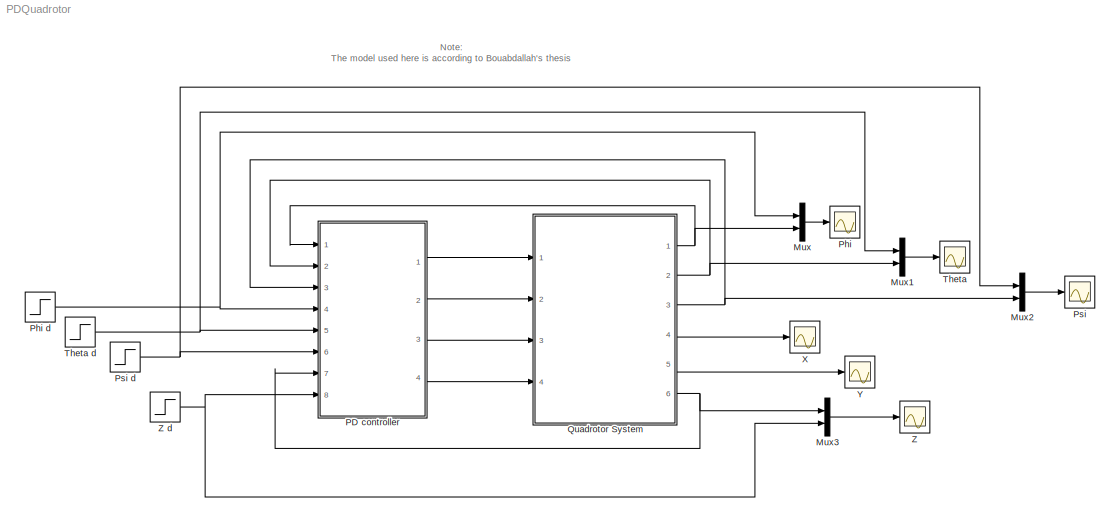
MODEL PDQuadrotor
KIND model
BLOCK [Mux] Mux
  DisplayOption = bar
  Inputs = 2
  Ports = [2, 1]
  SID = 1
BLOCK [Mux] Mux1
  DisplayOption = bar
  Inputs = 2
  Ports = [2, 1]
  SID = 2
BLOCK [Mux] Mux2
  DisplayOption = bar
  Inputs = 2
  Ports = [2, 1]
  SID = 3
BLOCK [Mux] Mux3
  DisplayOption = bar
  Inputs = 2
  Ports = [2, 1]
  SID = 4
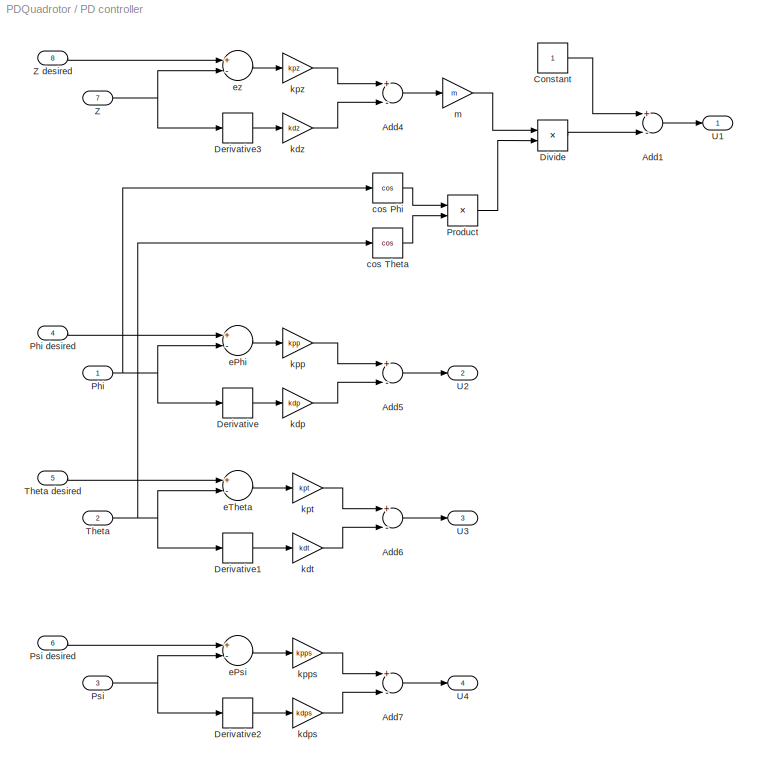
BLOCK [SubSystem] PD controller
  Ports = [8, 4]
  RequestExecContextInheritance = off
  SID = 5
BLOCK [Sum] PD controller/Add1
  InputSameDT = off
  Inputs = +-
  OutDataTypeStr = Inherit: Inherit via internal rule
  Ports = [2, 1]
  SID = 14
  SaturateOnIntegerOverflow = off
BLOCK [Sum] PD controller/Add4
  InputSameDT = off
  Inputs = +-
  OutDataTypeStr = Inherit: Inherit via internal rule
  Ports = [2, 1]
  SID = 15
  SaturateOnIntegerOverflow = off
BLOCK [Sum] PD controller/Add5
  InputSameDT = off
  Inputs = +-
  OutDataTypeStr = Inherit: Inherit via internal rule
  Ports = [2, 1]
  SID = 16
  SaturateOnIntegerOverflow = off
BLOCK [Sum] PD controller/Add6
  InputSameDT = off
  Inputs = +-
  OutDataTypeStr = Inherit: Inherit via internal rule
  Ports = [2, 1]
  SID = 17
  SaturateOnIntegerOverflow = off
BLOCK [Sum] PD controller/Add7
  InputSameDT = off
  Inputs = +-
  OutDataTypeStr = Inherit: Inherit via internal rule
  Ports = [2, 1]
  SID = 18
  SaturateOnIntegerOverflow = off
BLOCK [Constant] PD controller/Constant
  SID = 19
BLOCK [Derivative] PD controller/Derivative
  SID = 20
BLOCK [Derivative] PD controller/Derivative1
  SID = 21
BLOCK [Derivative] PD controller/Derivative2
  SID = 22
BLOCK [Derivative] PD controller/Derivative3
  SID = 23
BLOCK [Product] PD controller/Divide
  InputSameDT = off
  Inputs = */
  OutDataTypeStr = Inherit: Inherit via internal rule
  Ports = [2, 1]
  RndMeth = Floor
  SID = 24
  SaturateOnIntegerOverflow = off
BLOCK [Inport] PD controller/Phi
  IconDisplay = Port number
  SID = 6
BLOCK [Inport] PD controller/Phi desired
  IconDisplay = Port number
  Port = 4
  SID = 9
BLOCK [Product] PD controller/Product
  InputSameDT = off
  OutDataTypeStr = Inherit: Inherit via internal rule
  Ports = [2, 1]
  SID = 25
  SaturateOnIntegerOverflow = off
BLOCK [Inport] PD controller/Psi
  IconDisplay = Port number
  Port = 3
  SID = 8
BLOCK [Inport] PD controller/Psi desired
  IconDisplay = Port number
  Port = 6
  SID = 11
BLOCK [Inport] PD controller/Theta
  IconDisplay = Port number
  Port = 2
  SID = 7
BLOCK [Inport] PD controller/Theta desired
  IconDisplay = Port number
  Port = 5
  SID = 10
BLOCK [Outport] PD controller/U1
  IconDisplay = Port number
  SID = 41
BLOCK [Outport] PD controller/U2
  IconDisplay = Port number
  Port = 2
  SID = 42
BLOCK [Outport] PD controller/U3
  IconDisplay = Port number
  Port = 3
  SID = 43
BLOCK [Outport] PD controller/U4
  IconDisplay = Port number
  Port = 4
  SID = 44
BLOCK [Inport] PD controller/Z
  IconDisplay = Port number
  Port = 7
  SID = 12
BLOCK [Inport] PD controller/Z desired
  IconDisplay = Port number
  Port = 8
  SID = 13
BLOCK [Trigonometry] PD controller/cos Phi
  Operator = cos
  Ports = [1, 1]
  SID = 26
BLOCK [Trigonometry] PD controller/cos Theta
  Operator = cos
  Ports = [1, 1]
  SID = 27
BLOCK [Sum] PD controller/ePhi
  InputSameDT = off
  Inputs = +-
  OutDataTypeStr = Inherit: Inherit via internal rule
  Ports = [2, 1]
  SID = 28
  SaturateOnIntegerOverflow = off
BLOCK [Sum] PD controller/ePsi
  InputSameDT = off
  Inputs = +-
  OutDataTypeStr = Inherit: Inherit via internal rule
  Ports = [2, 1]
  SID = 29
  SaturateOnIntegerOverflow = off
BLOCK [Sum] PD controller/eTheta
  InputSameDT = off
  Inputs = +-
  OutDataTypeStr = Inherit: Inherit via internal rule
  Ports = [2, 1]
  SID = 30
  SaturateOnIntegerOverflow = off
BLOCK [Sum] PD controller/ez
  InputSameDT = off
  Inputs = +-
  OutDataTypeStr = Inherit: Inherit via internal rule
  Ports = [2, 1]
  SID = 31
  SaturateOnIntegerOverflow = off
BLOCK [Gain] PD controller/kdp
  Gain = kdp
  OutDataTypeStr = Inherit: Inherit via internal rule
  ParamDataTypeStr = Inherit: Inherit via internal rule
  SID = 32
  SaturateOnIntegerOverflow = off
BLOCK [Gain] PD controller/kdps
  Gain = kdps
  OutDataTypeStr = Inherit: Inherit via internal rule
  ParamDataTypeStr = Inherit: Inherit via internal rule
  SID = 33
  SaturateOnIntegerOverflow = off
BLOCK [Gain] PD controller/kdt
  Gain = kdt
  OutDataTypeStr = Inherit: Inherit via internal rule
  ParamDataTypeStr = Inherit: Inherit via internal rule
  SID = 34
  SaturateOnIntegerOverflow = off
BLOCK [Gain] PD controller/kdz
  Gain = kdz
  OutDataTypeStr = Inherit: Inherit via internal rule
  ParamDataTypeStr = Inherit: Inherit via internal rule
  SID = 35
  SaturateOnIntegerOverflow = off
BLOCK [Gain] PD controller/kpp
  Gain = kpp
  OutDataTypeStr = Inherit: Inherit via internal rule
  ParamDataTypeStr = Inherit: Inherit via internal rule
  SID = 36
  SaturateOnIntegerOverflow = off
BLOCK [Gain] PD controller/kpps
  Gain = kpps
  OutDataTypeStr = Inherit: Inherit via internal rule
  ParamDataTypeStr = Inherit: Inherit via internal rule
  SID = 37
  SaturateOnIntegerOverflow = off
BLOCK [Gain] PD controller/kpt
  Gain = kpt
  OutDataTypeStr = Inherit: Inherit via internal rule
  ParamDataTypeStr = Inherit: Inherit via internal rule
  SID = 38
  SaturateOnIntegerOverflow = off
BLOCK [Gain] PD controller/kpz
  Gain = kpz
  OutDataTypeStr = Inherit: Inherit via internal rule
  ParamDataTypeStr = Inherit: Inherit via internal rule
  SID = 39
  SaturateOnIntegerOverflow = off
BLOCK [Gain] PD controller/m
  Gain = m
  OutDataTypeStr = Inherit: Inherit via internal rule
  ParamDataTypeStr = Inherit: Inherit via internal rule
  SID = 40
  SaturateOnIntegerOverflow = off
BLOCK [Scope] Phi
  Floating = off
  NumInputPorts = 1
  Ports = [1]
  SID = 45
  ScopeSpecificationString = C++SS(StrPVP('Location','[188, 390, 512, 629]'),StrPVP('Open','off'),MxPVP('AxesTitles',54,'struct(''axes1'',''%<SignalLabel>'')'),StrPVP('DataFormat','StructureWithTime'),StrPVP('LimitDataPoints','off'),StrPVP('BlockParamSampleTime','0'),StrPVP('Decimation','1'),StrPVP('BlockParamSampleInput','off'))
BLOCK [Step] Phi d
  SID = 46
  SampleTime = 0
BLOCK [Scope] Psi
  Floating = off
  NumInputPorts = 1
  Ports = [1]
  SID = 47
  ScopeSpecificationString = C++SS(StrPVP('Location','[188, 390, 512, 629]'),StrPVP('Open','off'),MxPVP('AxesTitles',54,'struct(''axes1'',''%<SignalLabel>'')'),StrPVP('SaveName','ScopeData2'),StrPVP('DataFormat','StructureWithTime'),StrPVP('LimitDataPoints','off'),StrPVP('BlockParamSampleTime','0'),StrPVP('Decimation','1'),StrPVP('BlockParamSampleInput','off'))
BLOCK [Step] Psi d
  SID = 48
  SampleTime = 0
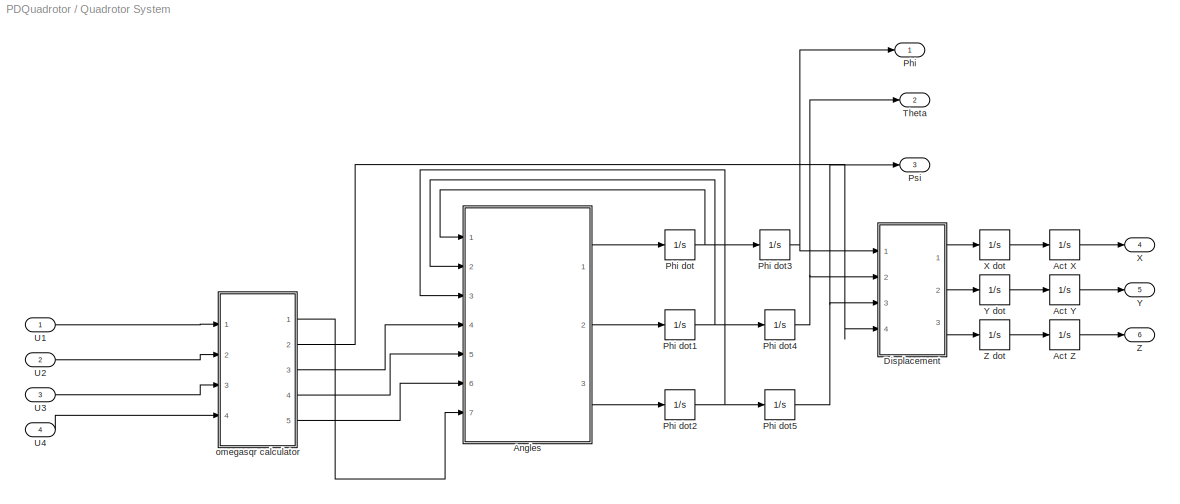
BLOCK [SubSystem] Quadrotor System
  Ports = [4, 6]
  RequestExecContextInheritance = off
  SID = 49
BLOCK [Integrator] Quadrotor System/Act X
  Ports = [1, 1]
  SID = 54
BLOCK [Integrator] Quadrotor System/Act Y
  Ports = [1, 1]
  SID = 55
BLOCK [Integrator] Quadrotor System/Act Z
  Ports = [1, 1]
  SID = 56
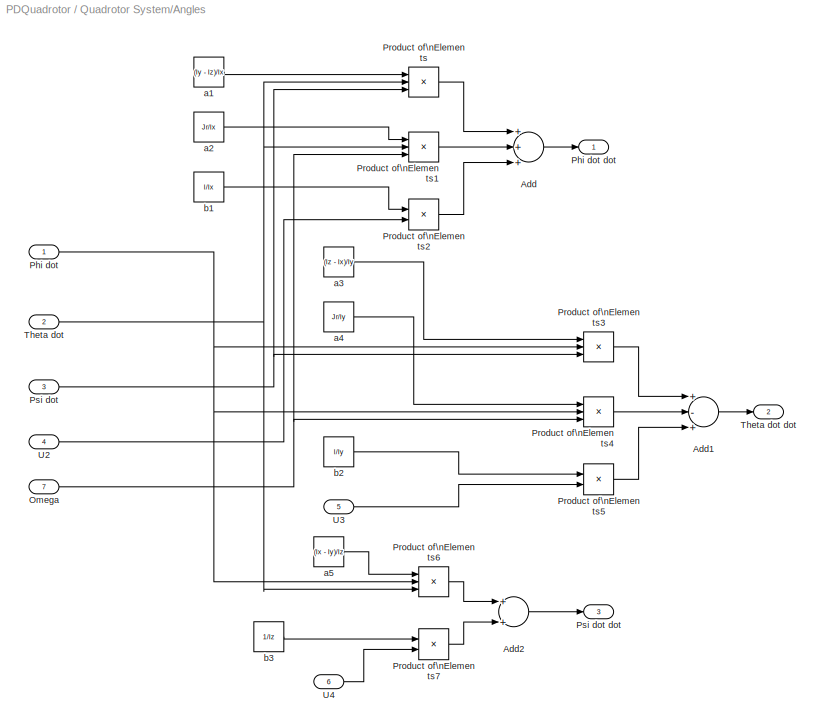
BLOCK [SubSystem] Quadrotor System/Angles
  Ports = [7, 3]
  RequestExecContextInheritance = off
  SID = 57
BLOCK [Sum] Quadrotor System/Angles/Add
  InputSameDT = off
  Inputs = +++
  OutDataTypeStr = Inherit: Inherit via internal rule
  Ports = [3, 1]
  SID = 65
  SaturateOnIntegerOverflow = off
BLOCK [Sum] Quadrotor System/Angles/Add1
  InputSameDT = off
  Inputs = +-+
  OutDataTypeStr = Inherit: Inherit via internal rule
  Ports = [3, 1]
  SID = 66
  SaturateOnIntegerOverflow = off
BLOCK [Sum] Quadrotor System/Angles/Add2
  InputSameDT = off
  OutDataTypeStr = Inherit: Inherit via internal rule
  Ports = [2, 1]
  SID = 67
  SaturateOnIntegerOverflow = off
BLOCK [Inport] Quadrotor System/Angles/Omega
  IconDisplay = Port number
  Port = 7
  SID = 64
BLOCK [Inport] Quadrotor System/Angles/Phi dot
  IconDisplay = Port number
  SID = 58
BLOCK [Outport] Quadrotor System/Angles/Phi dot dot
  IconDisplay = Port number
  SID = 84
BLOCK [Product] Quadrotor System/Angles/Product of\nElements
  InputSameDT = off
  Inputs = 3
  OutDataTypeStr = Inherit: Inherit via internal rule
  Ports = [3, 1]
  RndMeth = Floor
  SID = 68
  SaturateOnIntegerOverflow = off
BLOCK [Product] Quadrotor System/Angles/Product of\nElements1
  InputSameDT = off
  Inputs = 3
  OutDataTypeStr = Inherit: Inherit via internal rule
  Ports = [3, 1]
  RndMeth = Floor
  SID = 69
  SaturateOnIntegerOverflow = off
BLOCK [Product] Quadrotor System/Angles/Product of\nElements2
  InputSameDT = off
  OutDataTypeStr = Inherit: Inherit via internal rule
  Ports = [2, 1]
  RndMeth = Floor
  SID = 70
  SaturateOnIntegerOverflow = off
BLOCK [Product] Quadrotor System/Angles/Product of\nElements3
  InputSameDT = off
  Inputs = 3
  OutDataTypeStr = Inherit: Inherit via internal rule
  Ports = [3, 1]
  RndMeth = Floor
  SID = 71
  SaturateOnIntegerOverflow = off
BLOCK [Product] Quadrotor System/Angles/Product of\nElements4
  InputSameDT = off
  Inputs = 3
  OutDataTypeStr = Inherit: Inherit via internal rule
  Ports = [3, 1]
  RndMeth = Floor
  SID = 72
  SaturateOnIntegerOverflow = off
BLOCK [Product] Quadrotor System/Angles/Product of\nElements5
  InputSameDT = off
  OutDataTypeStr = Inherit: Inherit via internal rule
  Ports = [2, 1]
  RndMeth = Floor
  SID = 73
  SaturateOnIntegerOverflow = off
BLOCK [Product] Quadrotor System/Angles/Product of\nElements6
  InputSameDT = off
  Inputs = 3
  OutDataTypeStr = Inherit: Inherit via internal rule
  Ports = [3, 1]
  RndMeth = Floor
  SID = 74
  SaturateOnIntegerOverflow = off
BLOCK [Product] Quadrotor System/Angles/Product of\nElements7
  InputSameDT = off
  OutDataTypeStr = Inherit: Inherit via internal rule
  Ports = [2, 1]
  RndMeth = Floor
  SID = 75
  SaturateOnIntegerOverflow = off
BLOCK [Inport] Quadrotor System/Angles/Psi dot
  IconDisplay = Port number
  Port = 3
  SID = 60
BLOCK [Outport] Quadrotor System/Angles/Psi dot dot
  IconDisplay = Port number
  Port = 3
  SID = 86
BLOCK [Inport] Quadrotor System/Angles/Theta dot
  IconDisplay = Port number
  Port = 2
  SID = 59
BLOCK [Outport] Quadrotor System/Angles/Theta dot dot
  IconDisplay = Port number
  Port = 2
  SID = 85
BLOCK [Inport] Quadrotor System/Angles/U2
  IconDisplay = Port number
  Port = 4
  SID = 61
BLOCK [Inport] Quadrotor System/Angles/U3
  IconDisplay = Port number
  Port = 5
  SID = 62
BLOCK [Inport] Quadrotor System/Angles/U4
  IconDisplay = Port number
  Port = 6
  SID = 63
BLOCK [Constant] Quadrotor System/Angles/a1
  SID = 76
  Value = (Iy - Iz)/Ix
BLOCK [Constant] Quadrotor System/Angles/a2
  SID = 77
  Value = Jr/Ix
BLOCK [Constant] Quadrotor System/Angles/a3
  SID = 78
  Value = (Iz - Ix)/Iy
BLOCK [Constant] Quadrotor System/Angles/a4
  SID = 79
  Value = Jr/Iy
BLOCK [Constant] Quadrotor System/Angles/a5
  SID = 80
  Value = (Ix - Iy)/Iz
BLOCK [Constant] Quadrotor System/Angles/b1
  SID = 81
  Value = l/Ix
BLOCK [Constant] Quadrotor System/Angles/b2
  SID = 82
  Value = l/Iy
BLOCK [Constant] Quadrotor System/Angles/b3
  SID = 83
  Value = 1/Iz
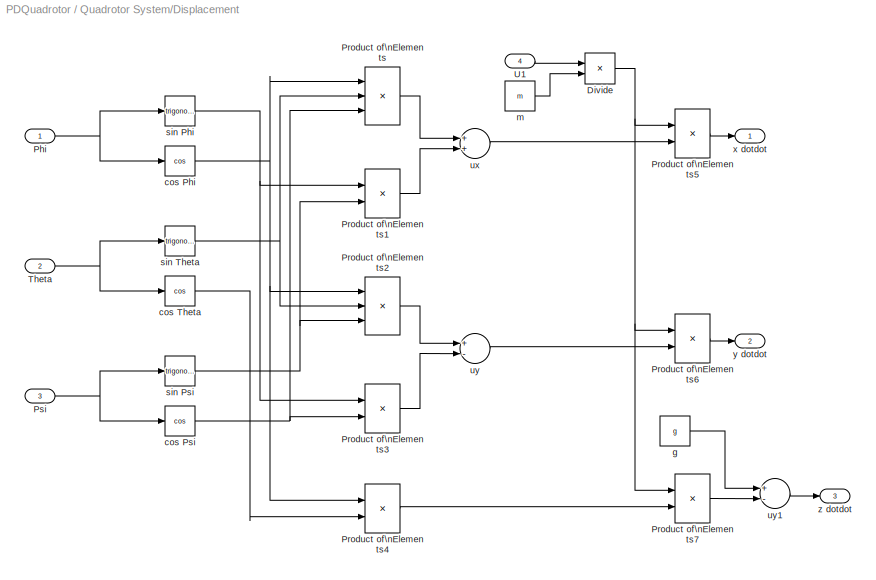
BLOCK [SubSystem] Quadrotor System/Displacement
  Ports = [4, 3]
  RequestExecContextInheritance = off
  SID = 87
BLOCK [Product] Quadrotor System/Displacement/Divide
  InputSameDT = off
  Inputs = */
  OutDataTypeStr = Inherit: Inherit via internal rule
  Ports = [2, 1]
  RndMeth = Floor
  SID = 92
  SaturateOnIntegerOverflow = off
BLOCK [Inport] Quadrotor System/Displacement/Phi
  IconDisplay = Port number
  SID = 88
BLOCK [Product] Quadrotor System/Displacement/Product of\nElements
  InputSameDT = off
  Inputs = 3
  OutDataTypeStr = Inherit: Inherit via internal rule
  Ports = [3, 1]
  RndMeth = Floor
  SID = 93
  SaturateOnIntegerOverflow = off
BLOCK [Product] Quadrotor System/Displacement/Product of\nElements1
  InputSameDT = off
  OutDataTypeStr = Inherit: Inherit via internal rule
  Ports = [2, 1]
  RndMeth = Floor
  SID = 94
  SaturateOnIntegerOverflow = off
BLOCK [Product] Quadrotor System/Displacement/Product of\nElements2
  InputSameDT = off
  Inputs = 3
  OutDataTypeStr = Inherit: Inherit via internal rule
  Ports = [3, 1]
  RndMeth = Floor
  SID = 95
  SaturateOnIntegerOverflow = off
BLOCK [Product] Quadrotor System/Displacement/Product of\nElements3
  InputSameDT = off
  OutDataTypeStr = Inherit: Inherit via internal rule
  Ports = [2, 1]
  RndMeth = Floor
  SID = 96
  SaturateOnIntegerOverflow = off
BLOCK [Product] Quadrotor System/Displacement/Product of\nElements4
  InputSameDT = off
  OutDataTypeStr = Inherit: Inherit via internal rule
  Ports = [2, 1]
  RndMeth = Floor
  SID = 97
  SaturateOnIntegerOverflow = off
BLOCK [Product] Quadrotor System/Displacement/Product of\nElements5
  InputSameDT = off
  OutDataTypeStr = Inherit: Inherit via internal rule
  Ports = [2, 1]
  RndMeth = Floor
  SID = 98
  SaturateOnIntegerOverflow = off
BLOCK [Product] Quadrotor System/Displacement/Product of\nElements6
  InputSameDT = off
  OutDataTypeStr = Inherit: Inherit via internal rule
  Ports = [2, 1]
  RndMeth = Floor
  SID = 99
  SaturateOnIntegerOverflow = off
BLOCK [Product] Quadrotor System/Displacement/Product of\nElements7
  InputSameDT = off
  OutDataTypeStr = Inherit: Inherit via internal rule
  Ports = [2, 1]
  RndMeth = Floor
  SID = 100
  SaturateOnIntegerOverflow = off
BLOCK [Inport] Quadrotor System/Displacement/Psi
  IconDisplay = Port number
  Port = 3
  SID = 90
BLOCK [Inport] Quadrotor System/Displacement/Theta
  IconDisplay = Port number
  Port = 2
  SID = 89
BLOCK [Inport] Quadrotor System/Displacement/U1
  IconDisplay = Port number
  Port = 4
  SID = 91
BLOCK [Trigonometry] Quadrotor System/Displacement/cos Phi
  Operator = cos
  Ports = [1, 1]
  SID = 101
BLOCK [Trigonometry] Quadrotor System/Displacement/cos Psi
  Operator = cos
  Ports = [1, 1]
  SID = 102
BLOCK [Trigonometry] Quadrotor System/Displacement/cos Theta
  Operator = cos
  Ports = [1, 1]
  SID = 103
BLOCK [Constant] Quadrotor System/Displacement/g
  SID = 104
  Value = g
BLOCK [Constant] Quadrotor System/Displacement/m
  SID = 105
  Value = m
BLOCK [Trigonometry] Quadrotor System/Displacement/sin Phi
  Ports = [1, 1]
  SID = 106
BLOCK [Trigonometry] Quadrotor System/Displacement/sin Psi
  Ports = [1, 1]
  SID = 107
BLOCK [Trigonometry] Quadrotor System/Displacement/sin Theta
  Ports = [1, 1]
  SID = 108
BLOCK [Sum] Quadrotor System/Displacement/ux
  InputSameDT = off
  OutDataTypeStr = Inherit: Inherit via internal rule
  Ports = [2, 1]
  SID = 109
  SaturateOnIntegerOverflow = off
BLOCK [Sum] Quadrotor System/Displacement/uy
  InputSameDT = off
  Inputs = +-
  OutDataTypeStr = Inherit: Inherit via internal rule
  Ports = [2, 1]
  SID = 110
  SaturateOnIntegerOverflow = off
BLOCK [Sum] Quadrotor System/Displacement/uy1
  InputSameDT = off
  Inputs = +-
  OutDataTypeStr = Inherit: Inherit via internal rule
  Ports = [2, 1]
  SID = 111
  SaturateOnIntegerOverflow = off
BLOCK [Outport] Quadrotor System/Displacement/x dotdot
  IconDisplay = Port number
  SID = 112
BLOCK [Outport] Quadrotor System/Displacement/y dotdot
  IconDisplay = Port number
  Port = 2
  SID = 113
BLOCK [Outport] Quadrotor System/Displacement/z dotdot
  IconDisplay = Port number
  Port = 3
  SID = 114
BLOCK [Outport] Quadrotor System/Phi
  IconDisplay = Port number
  SID = 159
BLOCK [Integrator] Quadrotor System/Phi dot
  Ports = [1, 1]
  SID = 115
BLOCK [Integrator] Quadrotor System/Phi dot1
  Ports = [1, 1]
  SID = 116
  ZeroCross = off
BLOCK [Integrator] Quadrotor System/Phi dot2
  Ports = [1, 1]
  SID = 117
  ZeroCross = off
BLOCK [Integrator] Quadrotor System/Phi dot3
  Ports = [1, 1]
  SID = 118
  ZeroCross = off
BLOCK [Integrator] Quadrotor System/Phi dot4
  Ports = [1, 1]
  SID = 119
  ZeroCross = off
BLOCK [Integrator] Quadrotor System/Phi dot5
  Ports = [1, 1]
  SID = 120
  ZeroCross = off
BLOCK [Outport] Quadrotor System/Psi
  IconDisplay = Port number
  Port = 3
  SID = 161
BLOCK [Outport] Quadrotor System/Theta
  IconDisplay = Port number
  Port = 2
  SID = 160
BLOCK [Inport] Quadrotor System/U1
  IconDisplay = Port number
  SID = 50
BLOCK [Inport] Quadrotor System/U2
  IconDisplay = Port number
  Port = 2
  SID = 51
BLOCK [Inport] Quadrotor System/U3
  IconDisplay = Port number
  Port = 3
  SID = 52
BLOCK [Inport] Quadrotor System/U4
  IconDisplay = Port number
  Port = 4
  SID = 53
BLOCK [Outport] Quadrotor System/X
  IconDisplay = Port number
  Port = 4
  SID = 162
BLOCK [Integrator] Quadrotor System/X dot
  Ports = [1, 1]
  SID = 121
BLOCK [Outport] Quadrotor System/Y
  IconDisplay = Port number
  Port = 5
  SID = 163
BLOCK [Integrator] Quadrotor System/Y dot
  Ports = [1, 1]
  SID = 122
BLOCK [Outport] Quadrotor System/Z
  IconDisplay = Port number
  Port = 6
  SID = 164
BLOCK [Integrator] Quadrotor System/Z dot
  Ports = [1, 1]
  SID = 123
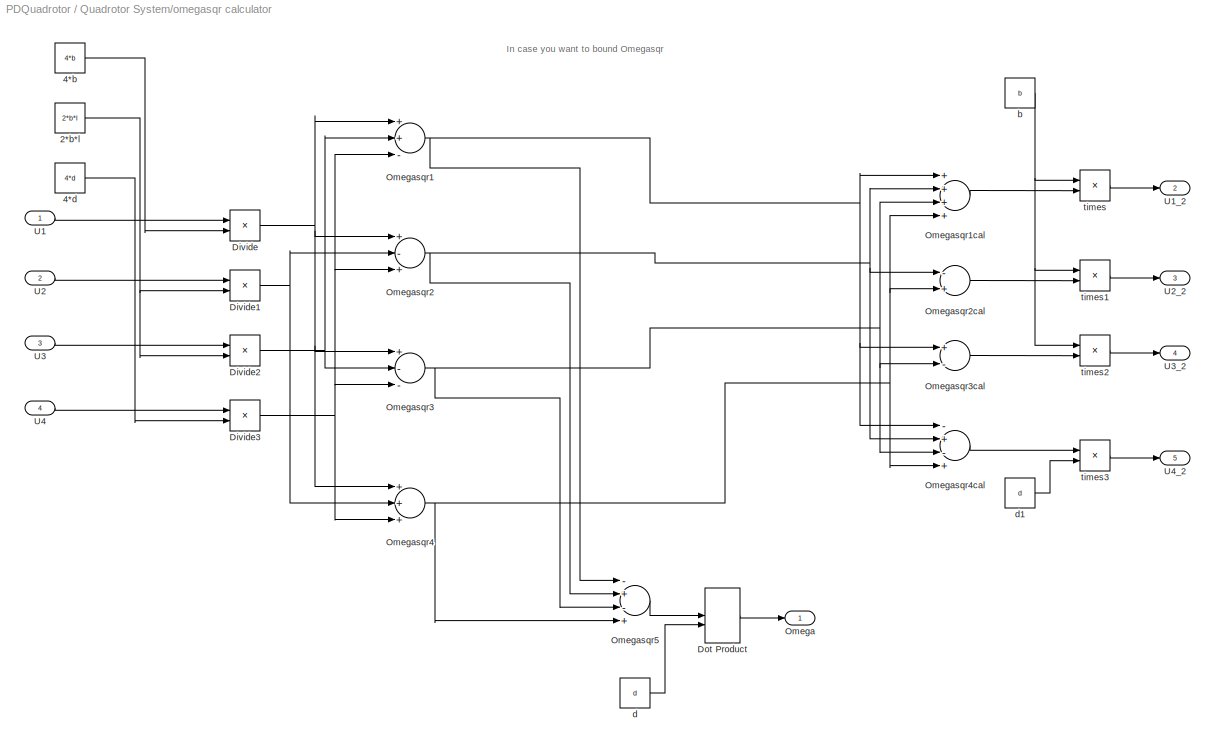
BLOCK [SubSystem] Quadrotor System/omegasqr calculator
  Ports = [4, 5]
  RequestExecContextInheritance = off
  SID = 124
BLOCK [Constant] Quadrotor System/omegasqr calculator/2*b*l
  SID = 129
  Value = 2*b*l
BLOCK [Constant] Quadrotor System/omegasqr calculator/4*b
  SID = 130
  Value = 4*b
BLOCK [Constant] Quadrotor System/omegasqr calculator/4*d
  SID = 131
  Value = 4*d
BLOCK [Product] Quadrotor System/omegasqr calculator/Divide
  InputSameDT = off
  Inputs = */
  OutDataTypeStr = Inherit: Inherit via internal rule
  Ports = [2, 1]
  RndMeth = Floor
  SID = 132
  SaturateOnIntegerOverflow = off
BLOCK [Product] Quadrotor System/omegasqr calculator/Divide1
  InputSameDT = off
  Inputs = */
  OutDataTypeStr = Inherit: Inherit via internal rule
  Ports = [2, 1]
  RndMeth = Floor
  SID = 133
  SaturateOnIntegerOverflow = off
BLOCK [Product] Quadrotor System/omegasqr calculator/Divide2
  InputSameDT = off
  Inputs = */
  OutDataTypeStr = Inherit: Inherit via internal rule
  Ports = [2, 1]
  RndMeth = Floor
  SID = 134
  SaturateOnIntegerOverflow = off
BLOCK [Product] Quadrotor System/omegasqr calculator/Divide3
  InputSameDT = off
  Inputs = */
  OutDataTypeStr = Inherit: Inherit via internal rule
  Ports = [2, 1]
  RndMeth = Floor
  SID = 135
  SaturateOnIntegerOverflow = off
BLOCK [DotProduct] Quadrotor System/omegasqr calculator/Dot Product
  OutDataTypeStr = Inherit: Inherit via internal rule
  SID = 136
BLOCK [Outport] Quadrotor System/omegasqr calculator/Omega
  IconDisplay = Port number
  SID = 153
BLOCK [Sum] Quadrotor System/omegasqr calculator/Omegasqr1
  InputSameDT = off
  Inputs = ++-
  OutDataTypeStr = Inherit: Inherit via internal rule
  Ports = [3, 1]
  SID = 137
  SaturateOnIntegerOverflow = off
BLOCK [Sum] Quadrotor System/omegasqr calculator/Omegasqr1cal
  InputSameDT = off
  Inputs = ++++
  OutDataTypeStr = Inherit: Inherit via internal rule
  Ports = [4, 1]
  SID = 138
  SaturateOnIntegerOverflow = off
BLOCK [Sum] Quadrotor System/omegasqr calculator/Omegasqr2
  InputSameDT = off
  Inputs = +-+
  OutDataTypeStr = Inherit: Inherit via internal rule
  Ports = [3, 1]
  SID = 139
  SaturateOnIntegerOverflow = off
BLOCK [Sum] Quadrotor System/omegasqr calculator/Omegasqr2cal
  InputSameDT = off
  Inputs = -+
  OutDataTypeStr = Inherit: Inherit via internal rule
  Ports = [2, 1]
  SID = 140
  SaturateOnIntegerOverflow = off
BLOCK [Sum] Quadrotor System/omegasqr calculator/Omegasqr3
  InputSameDT = off
  Inputs = +--
  OutDataTypeStr = Inherit: Inherit via internal rule
  Ports = [3, 1]
  SID = 141
  SaturateOnIntegerOverflow = off
BLOCK [Sum] Quadrotor System/omegasqr calculator/Omegasqr3cal
  InputSameDT = off
  Inputs = +-
  OutDataTypeStr = Inherit: Inherit via internal rule
  Ports = [2, 1]
  SID = 142
  SaturateOnIntegerOverflow = off
BLOCK [Sum] Quadrotor System/omegasqr calculator/Omegasqr4
  InputSameDT = off
  Inputs = +++
  OutDataTypeStr = Inherit: Inherit via internal rule
  Ports = [3, 1]
  SID = 143
  SaturateOnIntegerOverflow = off
BLOCK [Sum] Quadrotor System/omegasqr calculator/Omegasqr4cal
  InputSameDT = off
  Inputs = -+-+
  OutDataTypeStr = Inherit: Inherit via internal rule
  Ports = [4, 1]
  SID = 144
  SaturateOnIntegerOverflow = off
BLOCK [Sum] Quadrotor System/omegasqr calculator/Omegasqr5
  InputSameDT = off
  Inputs = -+-+
  OutDataTypeStr = Inherit: Inherit via internal rule
  Ports = [4, 1]
  SID = 145
  SaturateOnIntegerOverflow = off
BLOCK [Inport] Quadrotor System/omegasqr calculator/U1
  IconDisplay = Port number
  SID = 125
BLOCK [Outport] Quadrotor System/omegasqr calculator/U1_2
  IconDisplay = Port number
  Port = 2
  SID = 154
BLOCK [Inport] Quadrotor System/omegasqr calculator/U2
  IconDisplay = Port number
  Port = 2
  SID = 126
BLOCK [Outport] Quadrotor System/omegasqr calculator/U2_2
  IconDisplay = Port number
  Port = 3
  SID = 155
BLOCK [Inport] Quadrotor System/omegasqr calculator/U3
  IconDisplay = Port number
  Port = 3
  SID = 127
BLOCK [Outport] Quadrotor System/omegasqr calculator/U3_2
  IconDisplay = Port number
  Port = 4
  SID = 156
BLOCK [Inport] Quadrotor System/omegasqr calculator/U4
  IconDisplay = Port number
  Port = 4
  SID = 128
BLOCK [Outport] Quadrotor System/omegasqr calculator/U4_2
  IconDisplay = Port number
  Port = 5
  SID = 157
BLOCK [Constant] Quadrotor System/omegasqr calculator/b
  SID = 146
  Value = b
BLOCK [Constant] Quadrotor System/omegasqr calculator/d
  SID = 147
  Value = d
BLOCK [Constant] Quadrotor System/omegasqr calculator/d1
  SID = 148
  Value = d
BLOCK [Product] Quadrotor System/omegasqr calculator/times
  InputSameDT = off
  Inputs = **
  OutDataTypeStr = Inherit: Inherit via internal rule
  Ports = [2, 1]
  RndMeth = Floor
  SID = 149
  SaturateOnIntegerOverflow = off
BLOCK [Product] Quadrotor System/omegasqr calculator/times1
  InputSameDT = off
  Inputs = **
  OutDataTypeStr = Inherit: Inherit via internal rule
  Ports = [2, 1]
  RndMeth = Floor
  SID = 150
  SaturateOnIntegerOverflow = off
BLOCK [Product] Quadrotor System/omegasqr calculator/times2
  InputSameDT = off
  Inputs = **
  OutDataTypeStr = Inherit: Inherit via internal rule
  Ports = [2, 1]
  RndMeth = Floor
  SID = 151
  SaturateOnIntegerOverflow = off
BLOCK [Product] Quadrotor System/omegasqr calculator/times3
  InputSameDT = off
  Inputs = **
  OutDataTypeStr = Inherit: Inherit via internal rule
  Ports = [2, 1]
  RndMeth = Floor
  SID = 152
  SaturateOnIntegerOverflow = off
BLOCK [Scope] Theta
  Floating = off
  NumInputPorts = 1
  Ports = [1]
  SID = 165
  ScopeSpecificationString = C++SS(StrPVP('Location','[188, 390, 512, 629]'),StrPVP('Open','off'),MxPVP('AxesTitles',54,'struct(''axes1'',''%<SignalLabel>'')'),StrPVP('SaveName','ScopeData1'),StrPVP('DataFormat','StructureWithTime'),StrPVP('LimitDataPoints','off'),StrPVP('BlockParamSampleTime','0'),StrPVP('Decimation','1'),StrPVP('BlockParamSampleInput','off'))
BLOCK [Step] Theta d
  SID = 166
  SampleTime = 0
BLOCK [Scope] X
  Floating = off
  NumInputPorts = 1
  Ports = [1]
  SID = 167
  ScopeSpecificationString = C++SS(StrPVP('Location','[188, 390, 512, 629]'),StrPVP('Open','off'),MxPVP('AxesTitles',54,'struct(''axes1'',''%<SignalLabel>'')'),StrPVP('SaveName','ScopeData3'),StrPVP('DataFormat','StructureWithTime'),StrPVP('BlockParamSampleTime','0'),StrPVP('LimitDataPoints','on'),StrPVP('Decimation','1'),StrPVP('BlockParamSampleInput','off'))
BLOCK [Scope] Y
  Floating = off
  NumInputPorts = 1
  Ports = [1]
  SID = 168
  ScopeSpecificationString = C++SS(StrPVP('Location','[188, 390, 512, 629]'),StrPVP('Open','off'),MxPVP('AxesTitles',54,'struct(''axes1'',''%<SignalLabel>'')'),StrPVP('SaveName','ScopeData5'),StrPVP('DataFormat','StructureWithTime'),StrPVP('BlockParamSampleTime','0'),StrPVP('LimitDataPoints','on'),StrPVP('Decimation','1'),StrPVP('BlockParamSampleInput','off'))
BLOCK [Scope] Z
  Floating = off
  NumInputPorts = 1
  Ports = [1]
  SID = 169
  ScopeSpecificationString = C++SS(StrPVP('Location','[188, 390, 512, 629]'),StrPVP('Open','off'),MxPVP('AxesTitles',54,'struct(''axes1'',''%<SignalLabel>'')'),StrPVP('SaveName','ScopeData4'),StrPVP('DataFormat','StructureWithTime'),StrPVP('LimitDataPoints','off'),StrPVP('BlockParamSampleTime','0'),StrPVP('Decimation','1'),StrPVP('BlockParamSampleInput','off'))
BLOCK [Step] Z d
  SID = 170
  SampleTime = 0
ANNOTATION (root): Note: \nThe model used here is according to Bouabdallah's thesis
ANNOTATION Quadrotor System/omegasqr calculator: In case you want to bound Omegasqr
LINE Mux1:1 -> Theta:1
LINE Mux2:1 -> Psi:1
LINE Mux3:1 -> Z:1
LINE Mux:1 -> Phi:1
LINE PD controller/Add1:1 -> PD controller/U1:1
LINE PD controller/Add4:1 -> PD controller/m:1
LINE PD controller/Add5:1 -> PD controller/U2:1
LINE PD controller/Add6:1 -> PD controller/U3:1
LINE PD controller/Add7:1 -> PD controller/U4:1
LINE PD controller/Constant:1 -> PD controller/Add1:1
LINE PD controller/Derivative1:1 -> PD controller/kdt:1
LINE PD controller/Derivative2:1 -> PD controller/kdps:1
LINE PD controller/Derivative3:1 -> PD controller/kdz:1
LINE PD controller/Derivative:1 -> PD controller/kdp:1
LINE PD controller/Divide:1 -> PD controller/Add1:2
LINE PD controller/Phi desired:1 -> PD controller/ePhi:1
NET PD controller/Phi:1 -> PD controller/Derivative:1, PD controller/cos Phi:1, PD controller/ePhi:2
LINE PD controller/Product:1 -> PD controller/Divide:2
LINE PD controller/Psi desired:1 -> PD controller/ePsi:1
NET PD controller/Psi:1 -> PD controller/Derivative2:1, PD controller/ePsi:2
LINE PD controller/Theta desired:1 -> PD controller/eTheta:1
NET PD controller/Theta:1 -> PD controller/Derivative1:1, PD controller/cos Theta:1, PD controller/eTheta:2
LINE PD controller/Z desired:1 -> PD controller/ez:1
NET PD controller/Z:1 -> PD controller/Derivative3:1, PD controller/ez:2
LINE PD controller/cos Phi:1 -> PD controller/Product:1
LINE PD controller/cos Theta:1 -> PD controller/Product:2
LINE PD controller/ePhi:1 -> PD controller/kpp:1
LINE PD controller/ePsi:1 -> PD controller/kpps:1
LINE PD controller/eTheta:1 -> PD controller/kpt:1
LINE PD controller/ez:1 -> PD controller/kpz:1
LINE PD controller/kdp:1 -> PD controller/Add5:2
LINE PD controller/kdps:1 -> PD controller/Add7:2
LINE PD controller/kdt:1 -> PD controller/Add6:2
LINE PD controller/kdz:1 -> PD controller/Add4:2
LINE PD controller/kpp:1 -> PD controller/Add5:1
LINE PD controller/kpps:1 -> PD controller/Add7:1
LINE PD controller/kpt:1 -> PD controller/Add6:1
LINE PD controller/kpz:1 -> PD controller/Add4:1
LINE PD controller/m:1 -> PD controller/Divide:1
LINE PD controller:1 -> Quadrotor System:1
LINE PD controller:2 -> Quadrotor System:2
LINE PD controller:3 -> Quadrotor System:3
LINE PD controller:4 -> Quadrotor System:4
NET Phi d:1 -> Mux:1, PD controller:4
NET Psi d:1 -> Mux2:1, PD controller:6
LINE Quadrotor System/Act X:1 -> Quadrotor System/X:1
LINE Quadrotor System/Act Y:1 -> Quadrotor System/Y:1
LINE Quadrotor System/Act Z:1 -> Quadrotor System/Z:1
LINE Quadrotor System/Angles/Add1:1 -> Quadrotor System/Angles/Theta dot dot:1
LINE Quadrotor System/Angles/Add2:1 -> Quadrotor System/Angles/Psi dot dot:1
LINE Quadrotor System/Angles/Add:1 -> Quadrotor System/Angles/Phi dot dot:1
NET Quadrotor System/Angles/Omega:1 -> Quadrotor System/Angles/Product of\nElements1:3, Quadrotor System/Angles/Product of\nElements4:3
NET Quadrotor System/Angles/Phi dot:1 -> Quadrotor System/Angles/Product of\nElements3:2, Quadrotor System/Angles/Product of\nElements4:2, Quadrotor System/Angles/Product of\nElements6:2
LINE Quadrotor System/Angles/Product of\nElements1:1 -> Quadrotor System/Angles/Add:2
LINE Quadrotor System/Angles/Product of\nElements2:1 -> Quadrotor System/Angles/Add:3
LINE Quadrotor System/Angles/Product of\nElements3:1 -> Quadrotor System/Angles/Add1:1
LINE Quadrotor System/Angles/Product of\nElements4:1 -> Quadrotor System/Angles/Add1:2
LINE Quadrotor System/Angles/Product of\nElements5:1 -> Quadrotor System/Angles/Add1:3
LINE Quadrotor System/Angles/Product of\nElements6:1 -> Quadrotor System/Angles/Add2:1
LINE Quadrotor System/Angles/Product of\nElements7:1 -> Quadrotor System/Angles/Add2:2
LINE Quadrotor System/Angles/Product of\nElements:1 -> Quadrotor System/Angles/Add:1
NET Quadrotor System/Angles/Psi dot:1 -> Quadrotor System/Angles/Product of\nElements3:3, Quadrotor System/Angles/Product of\nElements:3
NET Quadrotor System/Angles/Theta dot:1 -> Quadrotor System/Angles/Product of\nElements1:2, Quadrotor System/Angles/Product of\nElements6:3, Quadrotor System/Angles/Product of\nElements:2
LINE Quadrotor System/Angles/U2:1 -> Quadrotor System/Angles/Product of\nElements2:2
LINE Quadrotor System/Angles/U3:1 -> Quadrotor System/Angles/Product of\nElements5:2
LINE Quadrotor System/Angles/U4:1 -> Quadrotor System/Angles/Product of\nElements7:2
LINE Quadrotor System/Angles/a1:1 -> Quadrotor System/Angles/Product of\nElements:1
LINE Quadrotor System/Angles/a2:1 -> Quadrotor System/Angles/Product of\nElements1:1
LINE Quadrotor System/Angles/a3:1 -> Quadrotor System/Angles/Product of\nElements3:1
LINE Quadrotor System/Angles/a4:1 -> Quadrotor System/Angles/Product of\nElements4:1
LINE Quadrotor System/Angles/a5:1 -> Quadrotor System/Angles/Product of\nElements6:1
LINE Quadrotor System/Angles/b1:1 -> Quadrotor System/Angles/Product of\nElements2:1
LINE Quadrotor System/Angles/b2:1 -> Quadrotor System/Angles/Product of\nElements5:1
LINE Quadrotor System/Angles/b3:1 -> Quadrotor System/Angles/Product of\nElements7:1
LINE Quadrotor System/Angles:1 -> Quadrotor System/Phi dot:1
LINE Quadrotor System/Angles:2 -> Quadrotor System/Phi dot1:1
LINE Quadrotor System/Angles:3 -> Quadrotor System/Phi dot2:1
NET Quadrotor System/Displacement/Divide:1 -> Quadrotor System/Displacement/Product of\nElements5:1, Quadrotor System/Displacement/Product of\nElements6:1, Quadrotor System/Displacement/Product of\nElements7:1
NET Quadrotor System/Displacement/Phi:1 -> Quadrotor System/Displacement/cos Phi:1, Quadrotor System/Displacement/sin Phi:1
LINE Quadrotor System/Displacement/Product of\nElements1:1 -> Quadrotor System/Displacement/ux:2
LINE Quadrotor System/Displacement/Product of\nElements2:1 -> Quadrotor System/Displacement/uy:1
LINE Quadrotor System/Displacement/Product of\nElements3:1 -> Quadrotor System/Displacement/uy:2
LINE Quadrotor System/Displacement/Product of\nElements4:1 -> Quadrotor System/Displacement/Product of\nElements7:2
LINE Quadrotor System/Displacement/Product of\nElements5:1 -> Quadrotor System/Displacement/x dotdot:1
LINE Quadrotor System/Displacement/Product of\nElements6:1 -> Quadrotor System/Displacement/y dotdot:1
LINE Quadrotor System/Displacement/Product of\nElements7:1 -> Quadrotor System/Displacement/uy1:2
LINE Quadrotor System/Displacement/Product of\nElements:1 -> Quadrotor System/Displacement/ux:1
NET Quadrotor System/Displacement/Psi:1 -> Quadrotor System/Displacement/cos Psi:1, Quadrotor System/Displacement/sin Psi:1
NET Quadrotor System/Displacement/Theta:1 -> Quadrotor System/Displacement/cos Theta:1, Quadrotor System/Displacement/sin Theta:1
LINE Quadrotor System/Displacement/U1:1 -> Quadrotor System/Displacement/Divide:1
NET Quadrotor System/Displacement/cos Phi:1 -> Quadrotor System/Displacement/Product of\nElements2:1, Quadrotor System/Displacement/Product of\nElements4:1, Quadrotor System/Displacement/Product of\nElements:1
NET Quadrotor System/Displacement/cos Psi:1 -> Quadrotor System/Displacement/Product of\nElements3:2, Quadrotor System/Displacement/Product of\nElements:3
LINE Quadrotor System/Displacement/cos Theta:1 -> Quadrotor System/Displacement/Product of\nElements4:2
LINE Quadrotor System/Displacement/g:1 -> Quadrotor System/Displacement/uy1:1
LINE Quadrotor System/Displacement/m:1 -> Quadrotor System/Displacement/Divide:2
NET Quadrotor System/Displacement/sin Phi:1 -> Quadrotor System/Displacement/Product of\nElements1:1, Quadrotor System/Displacement/Product of\nElements3:1
NET Quadrotor System/Displacement/sin Psi:1 -> Quadrotor System/Displacement/Product of\nElements1:2, Quadrotor System/Displacement/Product of\nElements2:3
NET Quadrotor System/Displacement/sin Theta:1 -> Quadrotor System/Displacement/Product of\nElements2:2, Quadrotor System/Displacement/Product of\nElements:2
LINE Quadrotor System/Displacement/ux:1 -> Quadrotor System/Displacement/Product of\nElements5:2
LINE Quadrotor System/Displacement/uy1:1 -> Quadrotor System/Displacement/z dotdot:1
LINE Quadrotor System/Displacement/uy:1 -> Quadrotor System/Displacement/Product of\nElements6:2
LINE Quadrotor System/Displacement:1 -> Quadrotor System/X dot:1
LINE Quadrotor System/Displacement:2 -> Quadrotor System/Y dot:1
LINE Quadrotor System/Displacement:3 -> Quadrotor System/Z dot:1
NET Quadrotor System/Phi dot1:1 -> Quadrotor System/Angles:2, Quadrotor System/Phi dot4:1
NET Quadrotor System/Phi dot2:1 -> Quadrotor System/Angles:3, Quadrotor System/Phi dot5:1
NET Quadrotor System/Phi dot3:1 -> Quadrotor System/Displacement:1, Quadrotor System/Phi:1
NET Quadrotor System/Phi dot4:1 -> Quadrotor System/Displacement:2, Quadrotor System/Theta:1
NET Quadrotor System/Phi dot5:1 -> Quadrotor System/Displacement:3, Quadrotor System/Psi:1
NET Quadrotor System/Phi dot:1 -> Quadrotor System/Angles:1, Quadrotor System/Phi dot3:1
LINE Quadrotor System/U1:1 -> Quadrotor System/omegasqr calculator:1
LINE Quadrotor System/U2:1 -> Quadrotor System/omegasqr calculator:2
LINE Quadrotor System/U3:1 -> Quadrotor System/omegasqr calculator:3
LINE Quadrotor System/U4:1 -> Quadrotor System/omegasqr calculator:4
LINE Quadrotor System/X dot:1 -> Quadrotor System/Act X:1
LINE Quadrotor System/Y dot:1 -> Quadrotor System/Act Y:1
LINE Quadrotor System/Z dot:1 -> Quadrotor System/Act Z:1
NET Quadrotor System/omegasqr calculator/2*b*l:1 -> Quadrotor System/omegasqr calculator/Divide1:2, Quadrotor System/omegasqr calculator/Divide2:2
LINE Quadrotor System/omegasqr calculator/4*b:1 -> Quadrotor System/omegasqr calculator/Divide:2
LINE Quadrotor System/omegasqr calculator/4*d:1 -> Quadrotor System/omegasqr calculator/Divide3:2
NET Quadrotor System/omegasqr calculator/Divide1:1 -> Quadrotor System/omegasqr calculator/Omegasqr2:2, Quadrotor System/omegasqr calculator/Omegasqr4:2
NET Quadrotor System/omegasqr calculator/Divide2:1 -> Quadrotor System/omegasqr calculator/Omegasqr1:2, Quadrotor System/omegasqr calculator/Omegasqr3:2
NET Quadrotor System/omegasqr calculator/Divide3:1 -> Quadrotor System/omegasqr calculator/Omegasqr1:3, Quadrotor System/omegasqr calculator/Omegasqr2:3, Quadrotor System/omegasqr calculator/Omegasqr3:3, Quadrotor System/omegasqr calculator/Omegasqr4:3
NET Quadrotor System/omegasqr calculator/Divide:1 -> Quadrotor System/omegasqr calculator/Omegasqr1:1, Quadrotor System/omegasqr calculator/Omegasqr2:1, Quadrotor System/omegasqr calculator/Omegasqr3:1, Quadrotor System/omegasqr calculator/Omegasqr4:1
LINE Quadrotor System/omegasqr calculator/Dot Product:1 -> Quadrotor System/omegasqr calculator/Omega:1
NET Quadrotor System/omegasqr calculator/Omegasqr1:1 -> Quadrotor System/omegasqr calculator/Omegasqr1cal:1, Quadrotor System/omegasqr calculator/Omegasqr3cal:1, Quadrotor System/omegasqr calculator/Omegasqr4cal:1, Quadrotor System/omegasqr calculator/Omegasqr5:1
LINE Quadrotor System/omegasqr calculator/Omegasqr1cal:1 -> Quadrotor System/omegasqr calculator/times:2
NET Quadrotor System/omegasqr calculator/Omegasqr2:1 -> Quadrotor System/omegasqr calculator/Omegasqr1cal:2, Quadrotor System/omegasqr calculator/Omegasqr2cal:1, Quadrotor System/omegasqr calculator/Omegasqr4cal:2, Quadrotor System/omegasqr calculator/Omegasqr5:2
LINE Quadrotor System/omegasqr calculator/Omegasqr2cal:1 -> Quadrotor System/omegasqr calculator/times1:2
NET Quadrotor System/omegasqr calculator/Omegasqr3:1 -> Quadrotor System/omegasqr calculator/Omegasqr1cal:3, Quadrotor System/omegasqr calculator/Omegasqr3cal:2, Quadrotor System/omegasqr calculator/Omegasqr4cal:3, Quadrotor System/omegasqr calculator/Omegasqr5:3
LINE Quadrotor System/omegasqr calculator/Omegasqr3cal:1 -> Quadrotor System/omegasqr calculator/times2:2
NET Quadrotor System/omegasqr calculator/Omegasqr4:1 -> Quadrotor System/omegasqr calculator/Omegasqr1cal:4, Quadrotor System/omegasqr calculator/Omegasqr2cal:2, Quadrotor System/omegasqr calculator/Omegasqr4cal:4, Quadrotor System/omegasqr calculator/Omegasqr5:4
LINE Quadrotor System/omegasqr calculator/Omegasqr4cal:1 -> Quadrotor System/omegasqr calculator/times3:1
LINE Quadrotor System/omegasqr calculator/Omegasqr5:1 -> Quadrotor System/omegasqr calculator/Dot Product:1
LINE Quadrotor System/omegasqr calculator/U1:1 -> Quadrotor System/omegasqr calculator/Divide:1
LINE Quadrotor System/omegasqr calculator/U2:1 -> Quadrotor System/omegasqr calculator/Divide1:1
LINE Quadrotor System/omegasqr calculator/U3:1 -> Quadrotor System/omegasqr calculator/Divide2:1
LINE Quadrotor System/omegasqr calculator/U4:1 -> Quadrotor System/omegasqr calculator/Divide3:1
NET Quadrotor System/omegasqr calculator/b:1 -> Quadrotor System/omegasqr calculator/times1:1, Quadrotor System/omegasqr calculator/times2:1, Quadrotor System/omegasqr calculator/times:1
LINE Quadrotor System/omegasqr calculator/d1:1 -> Quadrotor System/omegasqr calculator/times3:2
LINE Quadrotor System/omegasqr calculator/d:1 -> Quadrotor System/omegasqr calculator/Dot Product:2
LINE Quadrotor System/omegasqr calculator/times1:1 -> Quadrotor System/omegasqr calculator/U2_2:1
LINE Quadrotor System/omegasqr calculator/times2:1 -> Quadrotor System/omegasqr calculator/U3_2:1
LINE Quadrotor System/omegasqr calculator/times3:1 -> Quadrotor System/omegasqr calculator/U4_2:1
LINE Quadrotor System/omegasqr calculator/times:1 -> Quadrotor System/omegasqr calculator/U1_2:1
LINE Quadrotor System/omegasqr calculator:1 -> Quadrotor System/Angles:7
LINE Quadrotor System/omegasqr calculator:2 -> Quadrotor System/Displacement:4
LINE Quadrotor System/omegasqr calculator:3 -> Quadrotor System/Angles:4
LINE Quadrotor System/omegasqr calculator:4 -> Quadrotor System/Angles:5
LINE Quadrotor System/omegasqr calculator:5 -> Quadrotor System/Angles:6
NET Quadrotor System:1 -> Mux:2, PD controller:1
NET Quadrotor System:2 -> Mux1:2, PD controller:2
NET Quadrotor System:3 -> Mux2:2, PD controller:3
LINE Quadrotor System:4 -> X:1
LINE Quadrotor System:5 -> Y:1
NET Quadrotor System:6 -> Mux3:1, PD controller:7
NET Theta d:1 -> Mux1:1, PD controller:5
NET Z d:1 -> Mux3:2, PD controller:8
note: NET lines group one-source signal fan-out (src -> all destinations, sorted); 1:1 wires keep LINE
